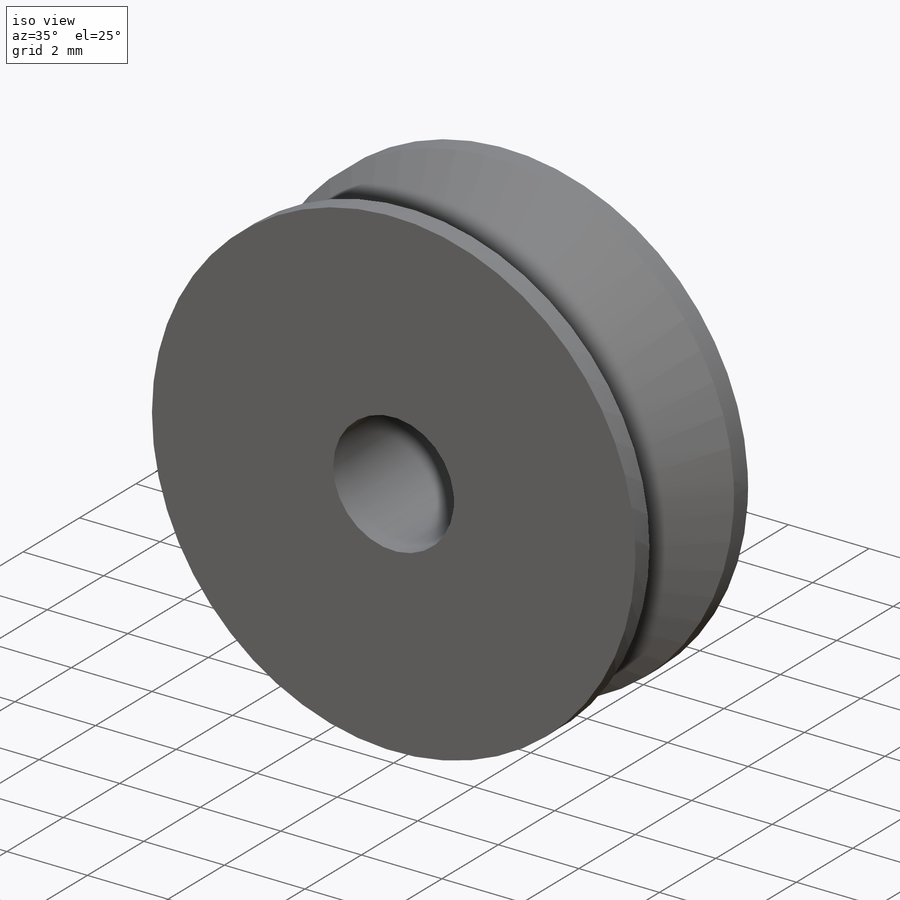
[diagram: iso view]
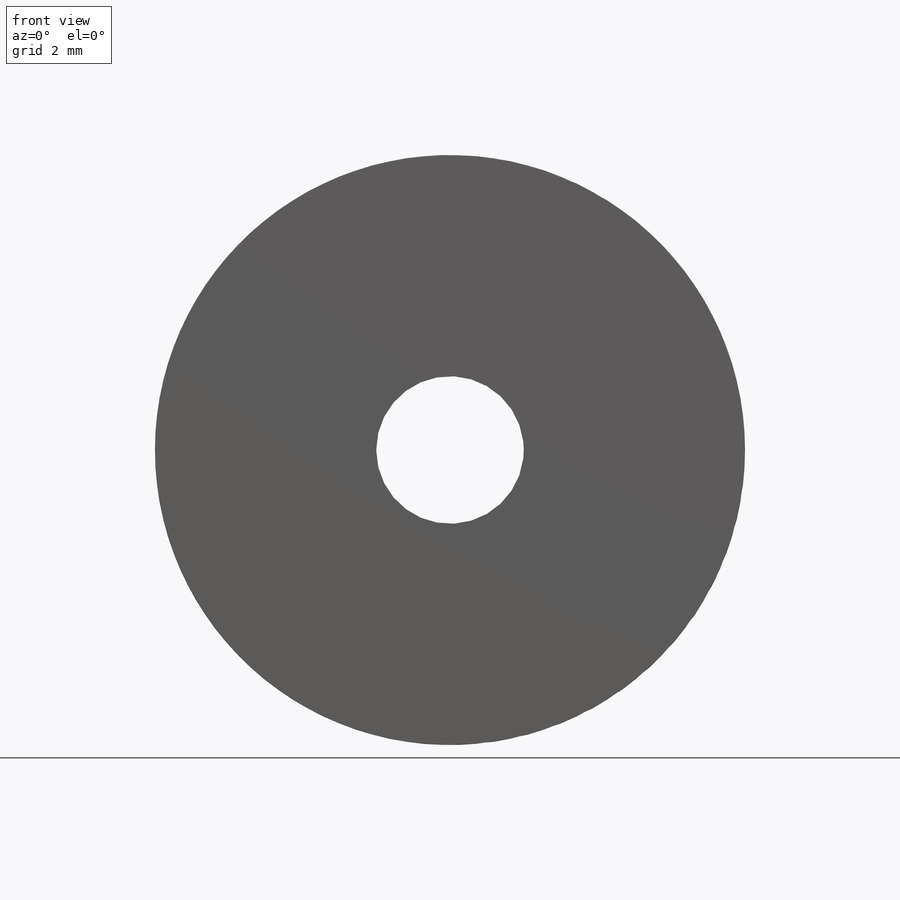
[diagram: front view]
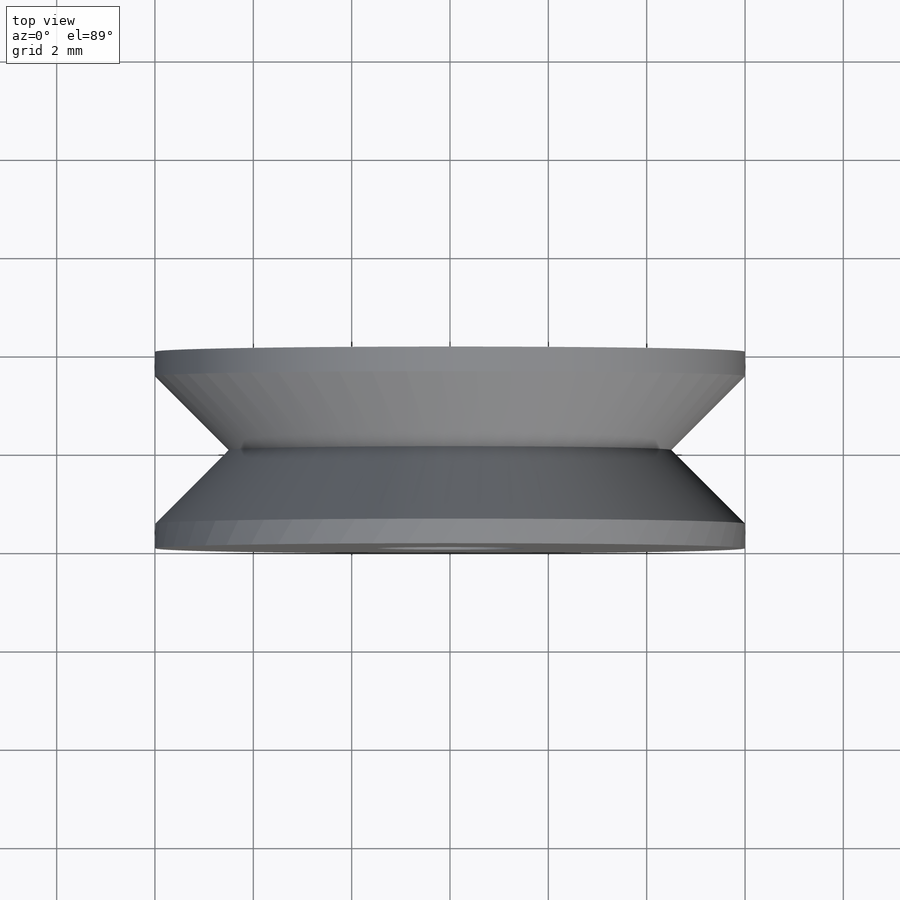
[diagram: top view]
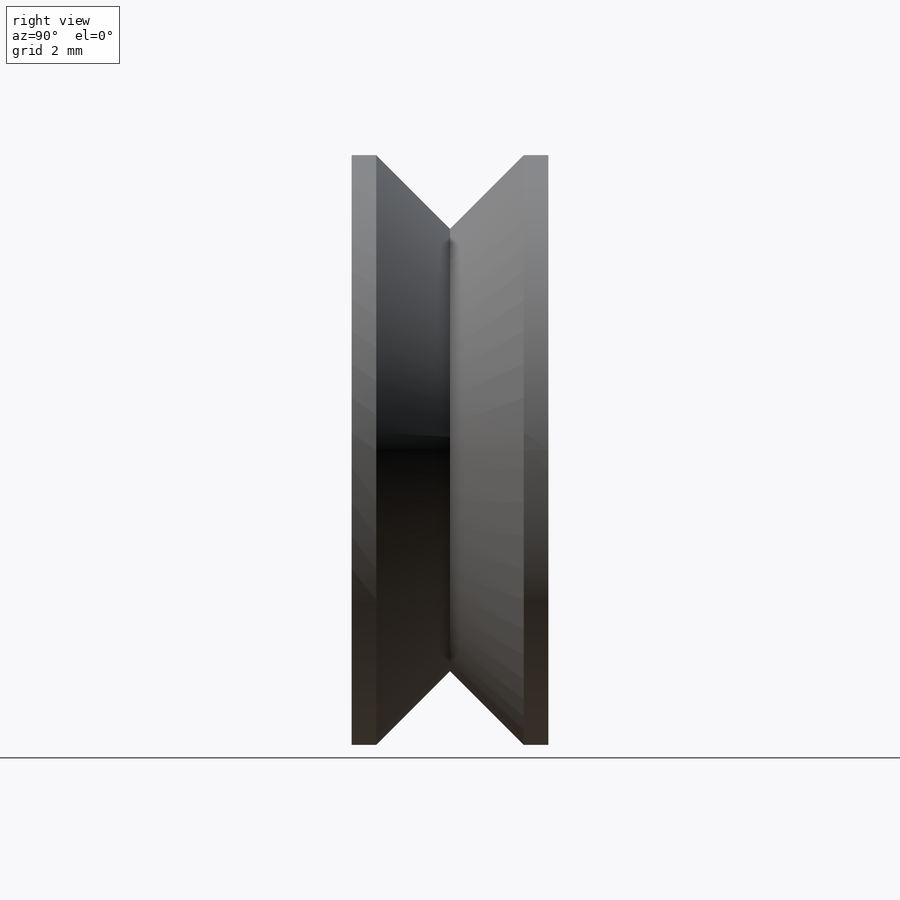
[diagram: right view]
SOLIDWORKS PART (.sldprt)
format: sldprt  version: not decoded by parser v0  size: 162,816 bytes
history: native  units: mm
features: sketch x2, extrude x2, chamfer x2, material x1 (+13 scaffold rows collapsed)
feature tree (20):
  scaffold x13  (default folders/planes/origin — collapsed)
  material  "Material <not specified>"
  sketch  "Sketch1"  dims[D1=3.0mm D2=12.0mm]
  extrude  "Boss-Extrude1"  Depth=2mm
  chamfer  "Chamfer1"  Distance=1.5mm Angle=45deg
  sketch  "Sketch2"  dims[D1=3.0mm D2=12.0mm]
  extrude  "Boss-Extrude2"  Depth=2mm
  chamfer  "Chamfer2"  Distance=1.5mm Angle=45deg
decode coverage: 6 of 6 modeling features carry decoded parameters
note: suppression state not decoded; provenance and decode notes live in map.json
